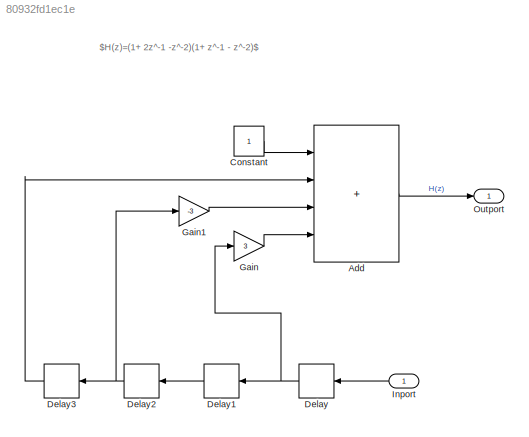
MODEL slx_80932fd1ec1e
KIND model
CONFIG AbsTol = auto
CONFIG EnableMultiTasking = off
CONFIG FixedStep = auto
CONFIG MaxStep = auto
CONFIG MinStep = auto
CONFIG RelTol = 1e-3
CONFIG SampleTimeConstraint = Unconstrained
CONFIG SolverName = VariableStepAuto
CONFIG StartTime = 0.0
CONFIG StopTime = 10.0
BLOCK [Sum] Add
  IconShape = rectangular
  Inputs = ++++
  Ports = [4, 1]
BLOCK [Constant] Constant
BLOCK [Delay] Delay
  DelayLength = 1
  InputPortMap = u0
  NameLocation = top
  Ports = [1, 1]
BLOCK [Delay] Delay1
  DelayLength = 1
  InputPortMap = u0
  NameLocation = top
  Ports = [1, 1]
BLOCK [Delay] Delay2
  DelayLength = 1
  InputPortMap = u0
  NameLocation = top
  Ports = [1, 1]
BLOCK [Delay] Delay3
  DelayLength = 1
  InputPortMap = u0
  NameLocation = top
  Ports = [1, 1]
BLOCK [Gain] Gain
  Gain = 3
BLOCK [Gain] Gain1
  Gain = -3
BLOCK [Inport] Inport
  NameLocation = top
BLOCK [Outport] Outport
  OutDataTypeStr = double
  PortDimensions = 1
  SampleTime = [0.20000000000000001,0]
  SamplingMode = Sample based
  SignalType = real
ANNOTATION (root): $H(z)=(1+ 2z^-1 -z^-2)(1+ z^-1 - z^-2)$
LINE Add:1 -> Outport:1
LINE Constant:1 -> Add:1
LINE Delay1:1 -> Delay2:1
NET Delay2:1 -> Delay3:1, Gain1:1
LINE Delay3:1 -> Add:2
NET Delay:1 -> Delay1:1, Gain:1
LINE Gain1:1 -> Add:3
LINE Gain:1 -> Add:4
LINE Inport:1 -> Delay:1
note: NET lines group one-source signal fan-out (src -> all destinations, sorted); 1:1 wires keep LINE
